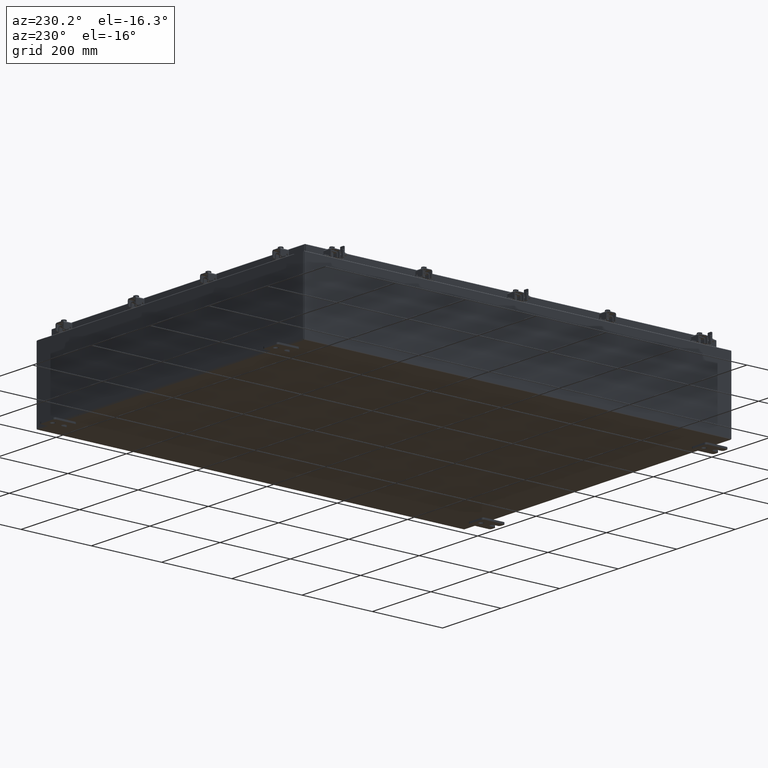
[diagram: clean part render]
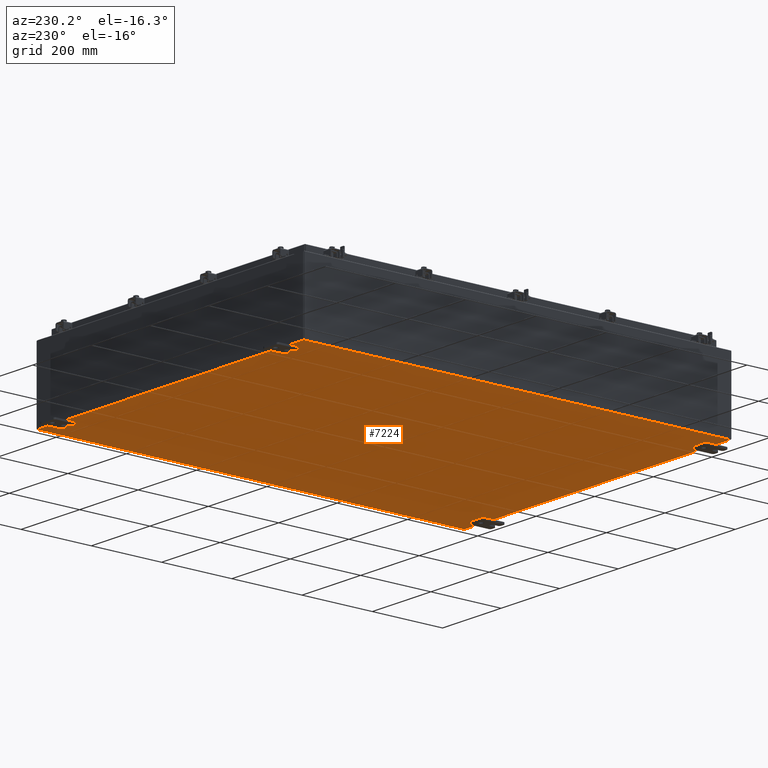
[diagram: same view with one face highlighted and labeled with its STEP entity id]
A machine part, auxiliary view. The second image highlights one B-rep face of the part: STEP entity #7224.
In plain terms, the highlighted planar face has unit normal (0, 0, -1).
Its self-contained STEP definition (entity closure, byte-faithful):
#704 = CARTESIAN_POINT ( 'NONE',  ( -17.91230000000000500, -23.92529999999998600, -0.07469999999999994700 ) ) ;
#948 = DIRECTION ( 'NONE',  ( -0.0000000000000000000, -1.000000000000000000, -8.208677865577646300E-017 ) ) ;
#1226 = PLANE ( 'NONE',  #16869 ) ;
#1425 = LINE ( 'NONE', #15962, #18214 ) ;
#2995 = VECTOR ( 'NONE', #19865, 39.37007874015748100 ) ;
#4019 = EDGE_CURVE ( 'NONE', #9022, #20131, #14797, .T. ) ;
#4045 = VERTEX_POINT ( 'NONE', #704 ) ;
#5157 = CARTESIAN_POINT ( 'NONE',  ( -18.00000000000000400, 23.92530000000000000, -0.07470000000000000300 ) ) ;
#7224 = ADVANCED_FACE ( 'NONE', ( #15783 ), #1226, .T. ) ;
#7859 = CARTESIAN_POINT ( 'NONE',  ( -18.00000000000000400, -23.92530000000000400, -0.07470000000000000300 ) ) ;
#7860 = EDGE_CURVE ( 'NONE', #4045, #10037, #10144, .T. ) ;
#9022 = VERTEX_POINT ( 'NONE', #23274 ) ;
#9650 = DIRECTION ( 'NONE',  ( 0.0000000000000000000, 0.0000000000000000000, -1.000000000000000000 ) ) ;
#10037 = VERTEX_POINT ( 'NONE', #11643 ) ;
#10144 = LINE ( 'NONE', #7859, #20711 ) ;
#11472 = ORIENTED_EDGE ( 'NONE', *, *, #7860, .F. ) ;
#11643 = CARTESIAN_POINT ( 'NONE',  ( 17.91229999999999500, -23.92530000000000000, -0.07470000000000000300 ) ) ;
#12090 = EDGE_CURVE ( 'NONE', #9022, #10037, #22362, .T. ) ;
#12634 = ORIENTED_EDGE ( 'NONE', *, *, #12090, .T. ) ;
#14797 = LINE ( 'NONE', #5157, #2995 ) ;
#15783 = FACE_OUTER_BOUND ( 'NONE', #21547, .T. ) ;
#15962 = CARTESIAN_POINT ( 'NONE',  ( -17.91230000000000500, -23.92529999999998900, -0.07469999999999994700 ) ) ;
#16782 = CARTESIAN_POINT ( 'NONE',  ( -17.91230000000000500, 23.92529999999998900, -0.07470000000000000300 ) ) ;
#16869 = AXIS2_PLACEMENT_3D ( 'NONE', #22288, #9650, #24367 ) ;
#18214 = VECTOR ( 'NONE', #22228, 39.37007874015748100 ) ;
#18390 = DIRECTION ( 'NONE',  ( 1.000000000000000000, 1.214154663850783700E-016, 0.0000000000000000000 ) ) ;
#18857 = ORIENTED_EDGE ( 'NONE', *, *, #4019, .F. ) ;
#18932 = ORIENTED_EDGE ( 'NONE', *, *, #23929, .T. ) ;
#19865 = DIRECTION ( 'NONE',  ( -1.000000000000000000, -0.0000000000000000000, -0.0000000000000000000 ) ) ;
#20131 = VERTEX_POINT ( 'NONE', #16782 ) ;
#20711 = VECTOR ( 'NONE', #18390, 39.37007874015748100 ) ;
#21547 = EDGE_LOOP ( 'NONE', ( #11472, #18932, #18857, #12634 ) ) ;
#22228 = DIRECTION ( 'NONE',  ( -0.0000000000000000000, 1.000000000000000000, -0.0000000000000000000 ) ) ;
#22288 = CARTESIAN_POINT ( 'NONE',  ( 0.0000000000000000000, 0.0000000000000000000, -0.07470000000000000300 ) ) ;
#22362 = LINE ( 'NONE', #24016, #23660 ) ;
#23274 = CARTESIAN_POINT ( 'NONE',  ( 17.91229999999999500, 23.92529999999998600, -0.07469999999999688000 ) ) ;
#23660 = VECTOR ( 'NONE', #948, 39.37007874015748100 ) ;
#23929 = EDGE_CURVE ( 'NONE', #4045, #20131, #1425, .T. ) ;
#24016 = CARTESIAN_POINT ( 'NONE',  ( 17.91229999999999500, 23.92529999999998900, -0.07469999999999688000 ) ) ;
#24367 = DIRECTION ( 'NONE',  ( -1.000000000000000000, 0.0000000000000000000, -0.0000000000000000000 ) ) ;